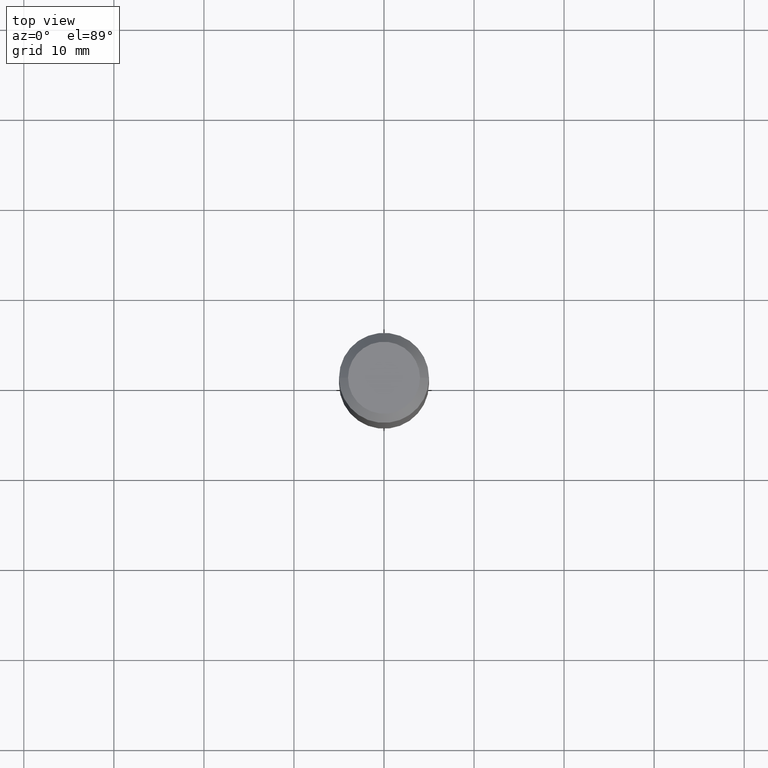
[diagram: clean part render]
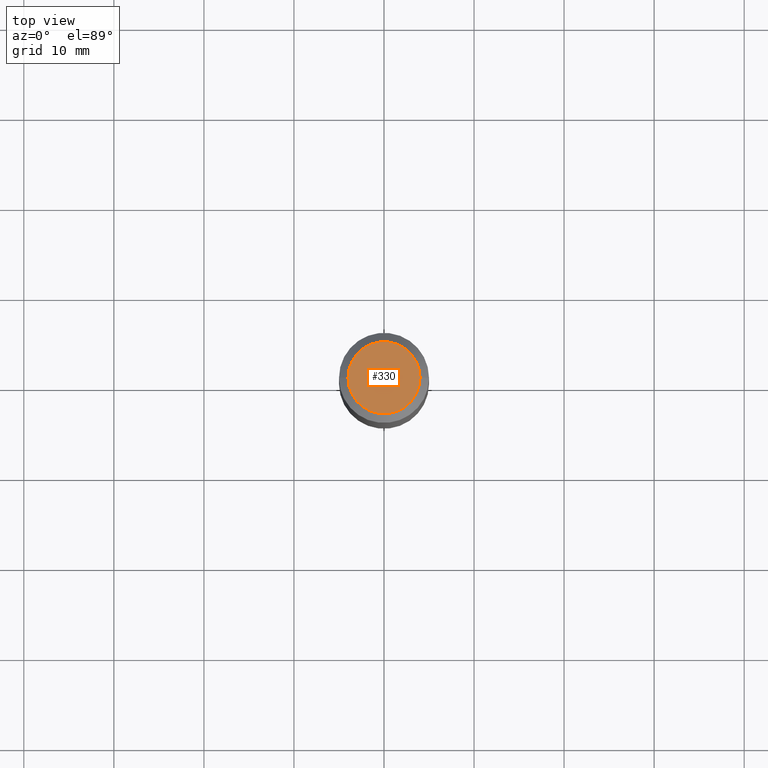
[diagram: same view with one face highlighted and labeled with its STEP entity id]
A machine part, top view. The second image highlights one B-rep face of the part: STEP entity #330.
In plain terms, the highlighted planar face has unit normal (0, -0, -1).
Its self-contained STEP definition (entity closure, byte-faithful):
#25 = CARTESIAN_POINT ( 'NONE',  ( -9.427742298522567634E-47, 1.346031739168368355E-32, 3.855188123715870730E-18 ) ) ;
#40 = PLANE ( 'NONE',  #87 ) ;
#52 = VERTEX_POINT ( 'NONE', #462 ) ;
#56 = DIRECTION ( 'NONE',  ( -2.445468806185136597E-29, 3.491481338843145583E-15, 1.000000000000000000 ) ) ;
#73 = DIRECTION ( 'NONE',  ( 1.000000000000000000, -6.982962677686265922E-15, 4.876223630392693006E-29 ) ) ;
#81 = ORIENTED_EDGE ( 'NONE', *, *, #339, .T. ) ;
#87 = AXIS2_PLACEMENT_3D ( 'NONE', #154, #165, #113 ) ;
#98 = CIRCLE ( 'NONE', #130, 0.1574800000000000089 ) ;
#113 = DIRECTION ( 'NONE',  ( -1.000000000000000000, 6.982962677686265922E-15, -4.876176775795935793E-29 ) ) ;
#119 = CARTESIAN_POINT ( 'NONE',  ( -9.427742298522567634E-47, 1.346031739168368355E-32, 3.855188123715870730E-18 ) ) ;
#130 = AXIS2_PLACEMENT_3D ( 'NONE', #25, #56, #429 ) ;
#154 = CARTESIAN_POINT ( 'NONE',  ( -4.713871149261283817E-47, 6.730158695841841775E-33, 1.927594061857935365E-18 ) ) ;
#165 = DIRECTION ( 'NONE',  ( 2.438088387897960049E-29, -3.491481338843145188E-15, -1.000000000000000000 ) ) ;
#169 = AXIS2_PLACEMENT_3D ( 'NONE', #119, #443, #73 ) ;
#207 = FACE_OUTER_BOUND ( 'NONE', #337, .T. ) ;
#219 = ORIENTED_EDGE ( 'NONE', *, *, #490, .T. ) ;
#255 = CARTESIAN_POINT ( 'NONE',  ( -0.1574800000000000089, 1.168406772637159618E-15, 3.855188123707939751E-18 ) ) ;
#330 = ADVANCED_FACE ( 'NONE', ( #207 ), #40, .F. ) ;
#337 = EDGE_LOOP ( 'NONE', ( #81, #219 ) ) ;
#339 = EDGE_CURVE ( 'NONE', #465, #52, #484, .T. ) ;
#429 = DIRECTION ( 'NONE',  ( 1.000000000000000000, -6.982962677686265922E-15, 4.876223630392693006E-29 ) ) ;
#443 = DIRECTION ( 'NONE',  ( -2.445468806185136597E-29, 3.491481338843145583E-15, 1.000000000000000000 ) ) ;
#462 = CARTESIAN_POINT ( 'NONE',  ( 0.1574800000000000089, -1.284169937930321189E-15, 3.855188123724205385E-18 ) ) ;
#465 = VERTEX_POINT ( 'NONE', #255 ) ;
#484 = CIRCLE ( 'NONE', #169, 0.1574800000000000089 ) ;
#490 = EDGE_CURVE ( 'NONE', #52, #465, #98, .T. ) ;